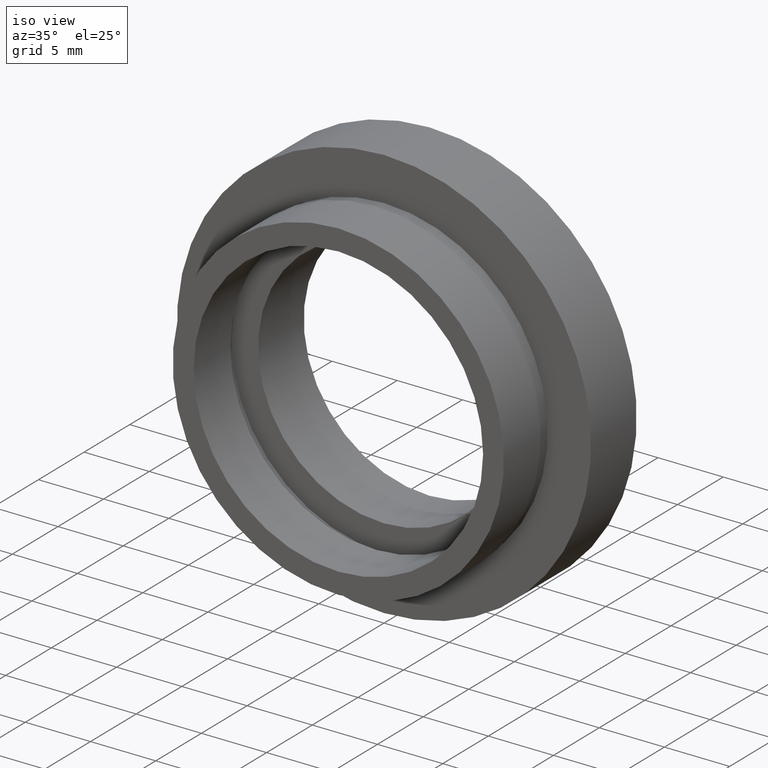
[diagram: clean part render]
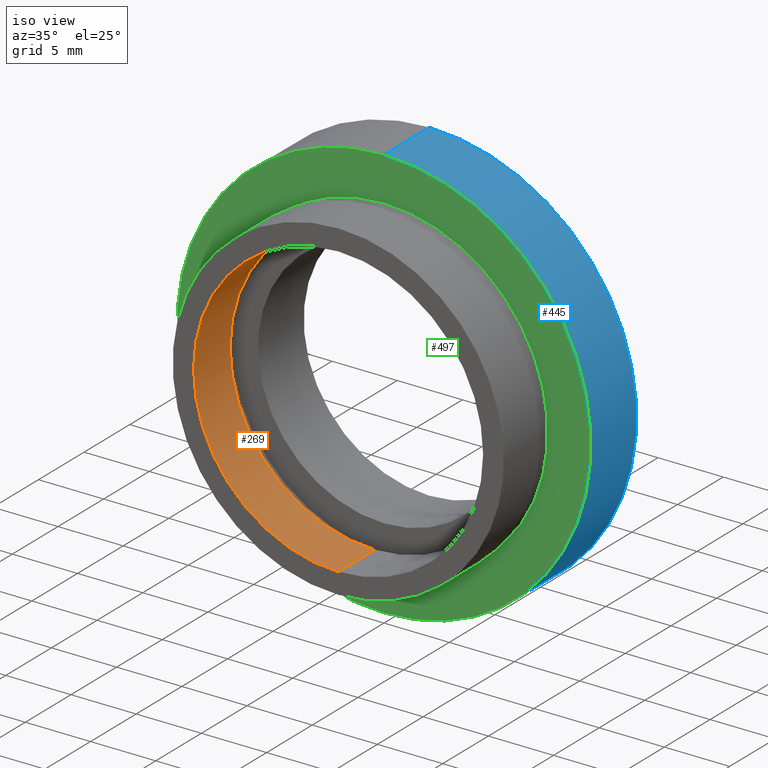
[diagram: same view with three faces highlighted in distinct colors, each labeled with its STEP entity id]
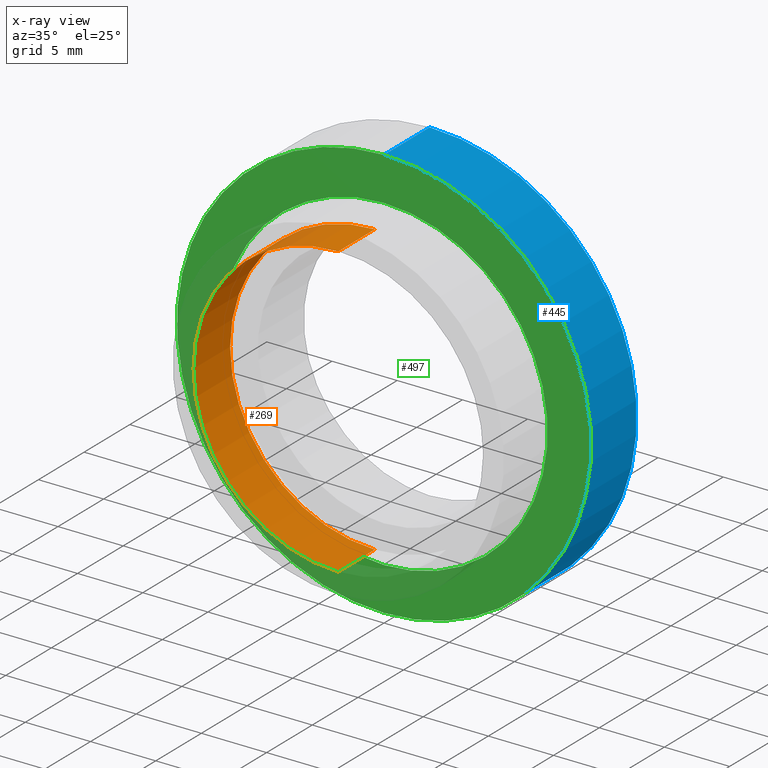
[diagram: x-ray of the same camera — body ghosted, the three highlighted faces saturated]
A machine part, iso view with three faces highlighted in distinct colors.
The next image is the same camera in x-ray (body ghosted, the three faces saturated) — at least one of them is partly hidden behind the body in this view.
Their STEP definitions:

[orange] entity #269 — the highlighted cylindrical surface (partial cylindrical patch) has radius 11.1 mm, axis along (-0, 1, -0).
#7 = DIRECTION ( 'NONE',  ( -0.0000000000000000000, 1.000000000000000000, -0.0000000000000000000 ) ) ;
#17 = DIRECTION ( 'NONE',  ( 0.0000000000000000000, 0.0000000000000000000, 1.000000000000000000 ) ) ;
#40 = CARTESIAN_POINT ( 'NONE',  ( 0.0000000000000000000, 4.000000000000000000, 0.0000000000000000000 ) ) ;
#66 = ORIENTED_EDGE ( 'NONE', *, *, #312, .F. ) ;
#96 = VERTEX_POINT ( 'NONE', #353 ) ;
#103 = ORIENTED_EDGE ( 'NONE', *, *, #484, .T. ) ;
#134 = EDGE_LOOP ( 'NONE', ( #66, #359, #103, #545 ) ) ;
#153 = VERTEX_POINT ( 'NONE', #192 ) ;
#155 = CARTESIAN_POINT ( 'NONE',  ( 0.0000000000000000000, 0.0000000000000000000, 0.0000000000000000000 ) ) ;
#173 = FACE_OUTER_BOUND ( 'NONE', #134, .T. ) ;
#192 = CARTESIAN_POINT ( 'NONE',  ( 0.0000000000000000000, 0.0000000000000000000, 11.10000000000000100 ) ) ;
#205 = DIRECTION ( 'NONE',  ( -0.0000000000000000000, 1.000000000000000000, -0.0000000000000000000 ) ) ;
#226 = VERTEX_POINT ( 'NONE', #618 ) ;
#262 = CYLINDRICAL_SURFACE ( 'NONE', #304, 11.10000000000000100 ) ;
#269 = ADVANCED_FACE ( 'NONE', ( #173 ), #262, .F. ) ;
#271 = CIRCLE ( 'NONE', #280, 11.10000000000000100 ) ;
#280 = AXIS2_PLACEMENT_3D ( 'NONE', #40, #7, #17 ) ;
#282 = CARTESIAN_POINT ( 'NONE',  ( 1.359357947053562400E-015, 4.000000000000000000, -11.10000000000000100 ) ) ;
#295 = CIRCLE ( 'NONE', #511, 11.10000000000000100 ) ;
#303 = LINE ( 'NONE', #552, #316 ) ;
#304 = AXIS2_PLACEMENT_3D ( 'NONE', #617, #492, #411 ) ;
#312 = EDGE_CURVE ( 'NONE', #96, #153, #295, .T. ) ;
#316 = VECTOR ( 'NONE', #562, 1000.000000000000000 ) ;
#353 = CARTESIAN_POINT ( 'NONE',  ( 1.359357947053562400E-015, 0.0000000000000000000, -11.10000000000000100 ) ) ;
#359 = ORIENTED_EDGE ( 'NONE', *, *, #371, .T. ) ;
#371 = EDGE_CURVE ( 'NONE', #96, #500, #384, .T. ) ;
#384 = LINE ( 'NONE', #395, #457 ) ;
#395 = CARTESIAN_POINT ( 'NONE',  ( 1.359357947053562400E-015, 13.74468085106383300, -11.10000000000000100 ) ) ;
#408 = EDGE_CURVE ( 'NONE', #153, #226, #303, .T. ) ;
#411 = DIRECTION ( 'NONE',  ( 0.0000000000000000000, 0.0000000000000000000, 1.000000000000000000 ) ) ;
#453 = DIRECTION ( 'NONE',  ( -0.0000000000000000000, 1.000000000000000000, -0.0000000000000000000 ) ) ;
#457 = VECTOR ( 'NONE', #205, 1000.000000000000000 ) ;
#484 = EDGE_CURVE ( 'NONE', #500, #226, #271, .T. ) ;
#489 = DIRECTION ( 'NONE',  ( 0.0000000000000000000, 0.0000000000000000000, 1.000000000000000000 ) ) ;
#492 = DIRECTION ( 'NONE',  ( -0.0000000000000000000, 1.000000000000000000, -0.0000000000000000000 ) ) ;
#500 = VERTEX_POINT ( 'NONE', #282 ) ;
#511 = AXIS2_PLACEMENT_3D ( 'NONE', #155, #453, #489 ) ;
#545 = ORIENTED_EDGE ( 'NONE', *, *, #408, .F. ) ;
#552 = CARTESIAN_POINT ( 'NONE',  ( 0.0000000000000000000, 13.74468085106383300, 11.10000000000000100 ) ) ;
#562 = DIRECTION ( 'NONE',  ( -0.0000000000000000000, 1.000000000000000000, -0.0000000000000000000 ) ) ;
#617 = CARTESIAN_POINT ( 'NONE',  ( 0.0000000000000000000, 13.74468085106383300, 0.0000000000000000000 ) ) ;
#618 = CARTESIAN_POINT ( 'NONE',  ( 0.0000000000000000000, 4.000000000000000000, 11.10000000000000100 ) ) ;

[blue] entity #445 — the highlighted cylindrical surface (partial cylindrical patch) has radius 15.875 mm, axis along (-0, 1, -0).
#1 = LINE ( 'NONE', #459, #526 ) ;
#8 = CIRCLE ( 'NONE', #163, 15.87500000000000000 ) ;
#49 = VERTEX_POINT ( 'NONE', #279 ) ;
#72 = DIRECTION ( 'NONE',  ( -0.0000000000000000000, 1.000000000000000000, -0.0000000000000000000 ) ) ;
#75 = AXIS2_PLACEMENT_3D ( 'NONE', #588, #186, #524 ) ;
#110 = VERTEX_POINT ( 'NONE', #537 ) ;
#152 = ORIENTED_EDGE ( 'NONE', *, *, #209, .T. ) ;
#163 = AXIS2_PLACEMENT_3D ( 'NONE', #283, #224, #252 ) ;
#164 = VECTOR ( 'NONE', #350, 1000.000000000000000 ) ;
#180 = EDGE_CURVE ( 'NONE', #582, #595, #8, .T. ) ;
#182 = DIRECTION ( 'NONE',  ( 0.0000000000000000000, 0.0000000000000000000, 1.000000000000000000 ) ) ;
#186 = DIRECTION ( 'NONE',  ( -0.0000000000000000000, 1.000000000000000000, -0.0000000000000000000 ) ) ;
#188 = CIRCLE ( 'NONE', #75, 15.87500000000000000 ) ;
#201 = ORIENTED_EDGE ( 'NONE', *, *, #180, .T. ) ;
#209 = EDGE_CURVE ( 'NONE', #595, #110, #1, .T. ) ;
#224 = DIRECTION ( 'NONE',  ( -0.0000000000000000000, 1.000000000000000000, -0.0000000000000000000 ) ) ;
#230 = EDGE_CURVE ( 'NONE', #582, #49, #559, .T. ) ;
#252 = DIRECTION ( 'NONE',  ( 0.0000000000000000000, 0.0000000000000000000, 1.000000000000000000 ) ) ;
#263 = EDGE_CURVE ( 'NONE', #49, #110, #188, .T. ) ;
#279 = CARTESIAN_POINT ( 'NONE',  ( 0.0000000000000000000, 10.00000000000000000, 15.87500000000000000 ) ) ;
#283 = CARTESIAN_POINT ( 'NONE',  ( 0.0000000000000000000, 5.000000000000000900, 0.0000000000000000000 ) ) ;
#338 = FACE_OUTER_BOUND ( 'NONE', #586, .T. ) ;
#350 = DIRECTION ( 'NONE',  ( -0.0000000000000000000, 1.000000000000000000, -0.0000000000000000000 ) ) ;
#355 = CARTESIAN_POINT ( 'NONE',  ( 0.0000000000000000000, 5.000000000000000900, 15.87500000000000000 ) ) ;
#430 = CARTESIAN_POINT ( 'NONE',  ( 0.0000000000000000000, 13.74468085106383300, 0.0000000000000000000 ) ) ;
#445 = ADVANCED_FACE ( 'NONE', ( #338 ), #522, .T. ) ;
#459 = CARTESIAN_POINT ( 'NONE',  ( 1.944126793646423200E-015, 13.74468085106383300, -15.87500000000000000 ) ) ;
#470 = CARTESIAN_POINT ( 'NONE',  ( 1.944126793646423200E-015, 5.000000000000000900, -15.87500000000000000 ) ) ;
#477 = ORIENTED_EDGE ( 'NONE', *, *, #263, .F. ) ;
#508 = DIRECTION ( 'NONE',  ( -0.0000000000000000000, 1.000000000000000000, -0.0000000000000000000 ) ) ;
#522 = CYLINDRICAL_SURFACE ( 'NONE', #597, 15.87500000000000000 ) ;
#524 = DIRECTION ( 'NONE',  ( 0.0000000000000000000, 0.0000000000000000000, 1.000000000000000000 ) ) ;
#526 = VECTOR ( 'NONE', #508, 1000.000000000000000 ) ;
#537 = CARTESIAN_POINT ( 'NONE',  ( 1.944126793646423200E-015, 10.00000000000000000, -15.87500000000000000 ) ) ;
#559 = LINE ( 'NONE', #615, #164 ) ;
#576 = ORIENTED_EDGE ( 'NONE', *, *, #230, .F. ) ;
#582 = VERTEX_POINT ( 'NONE', #355 ) ;
#586 = EDGE_LOOP ( 'NONE', ( #201, #152, #477, #576 ) ) ;
#588 = CARTESIAN_POINT ( 'NONE',  ( 0.0000000000000000000, 10.00000000000000000, 0.0000000000000000000 ) ) ;
#595 = VERTEX_POINT ( 'NONE', #470 ) ;
#597 = AXIS2_PLACEMENT_3D ( 'NONE', #430, #72, #182 ) ;
#615 = CARTESIAN_POINT ( 'NONE',  ( 0.0000000000000000000, 13.74468085106383300, 15.87500000000000000 ) ) ;

[green] entity #497 — the highlighted planar face has unit normal (-0, 1, 0).
#8 = CIRCLE ( 'NONE', #163, 15.87500000000000000 ) ;
#26 = CIRCLE ( 'NONE', #228, 12.55000000000000100 ) ;
#58 = AXIS2_PLACEMENT_3D ( 'NONE', #334, #337, #95 ) ;
#67 = EDGE_LOOP ( 'NONE', ( #97, #148 ) ) ;
#71 = DIRECTION ( 'NONE',  ( 0.0000000000000000000, 0.0000000000000000000, 1.000000000000000000 ) ) ;
#85 = DIRECTION ( 'NONE',  ( 0.0000000000000000000, 0.0000000000000000000, 1.000000000000000000 ) ) ;
#91 = EDGE_CURVE ( 'NONE', #624, #589, #26, .T. ) ;
#93 = ORIENTED_EDGE ( 'NONE', *, *, #91, .T. ) ;
#95 = DIRECTION ( 'NONE',  ( 0.0000000000000000000, 0.0000000000000000000, 1.000000000000000000 ) ) ;
#97 = ORIENTED_EDGE ( 'NONE', *, *, #180, .F. ) ;
#121 = CARTESIAN_POINT ( 'NONE',  ( 0.0000000000000000000, 5.000000000000000900, 0.0000000000000000000 ) ) ;
#131 = PLANE ( 'NONE',  #58 ) ;
#148 = ORIENTED_EDGE ( 'NONE', *, *, #405, .F. ) ;
#163 = AXIS2_PLACEMENT_3D ( 'NONE', #283, #224, #252 ) ;
#180 = EDGE_CURVE ( 'NONE', #582, #595, #8, .T. ) ;
#224 = DIRECTION ( 'NONE',  ( -0.0000000000000000000, 1.000000000000000000, -0.0000000000000000000 ) ) ;
#228 = AXIS2_PLACEMENT_3D ( 'NONE', #407, #530, #236 ) ;
#236 = DIRECTION ( 'NONE',  ( 0.0000000000000000000, 0.0000000000000000000, 1.000000000000000000 ) ) ;
#252 = DIRECTION ( 'NONE',  ( 0.0000000000000000000, 0.0000000000000000000, 1.000000000000000000 ) ) ;
#259 = CARTESIAN_POINT ( 'NONE',  ( 1.536931732929928400E-015, 5.000000000000000900, -12.55000000000000100 ) ) ;
#283 = CARTESIAN_POINT ( 'NONE',  ( 0.0000000000000000000, 5.000000000000000900, 0.0000000000000000000 ) ) ;
#292 = AXIS2_PLACEMENT_3D ( 'NONE', #121, #406, #71 ) ;
#305 = EDGE_LOOP ( 'NONE', ( #612, #93 ) ) ;
#309 = FACE_OUTER_BOUND ( 'NONE', #67, .T. ) ;
#334 = CARTESIAN_POINT ( 'NONE',  ( 15.87500000000000000, 5.000000000000000900, 0.0000000000000000000 ) ) ;
#337 = DIRECTION ( 'NONE',  ( -0.0000000000000000000, 1.000000000000000000, 0.0000000000000000000 ) ) ;
#355 = CARTESIAN_POINT ( 'NONE',  ( 0.0000000000000000000, 5.000000000000000900, 15.87500000000000000 ) ) ;
#380 = FACE_BOUND ( 'NONE', #305, .T. ) ;
#391 = CIRCLE ( 'NONE', #292, 12.55000000000000100 ) ;
#405 = EDGE_CURVE ( 'NONE', #595, #582, #490, .T. ) ;
#406 = DIRECTION ( 'NONE',  ( -0.0000000000000000000, 1.000000000000000000, -0.0000000000000000000 ) ) ;
#407 = CARTESIAN_POINT ( 'NONE',  ( 0.0000000000000000000, 5.000000000000000900, 0.0000000000000000000 ) ) ;
#435 = DIRECTION ( 'NONE',  ( -0.0000000000000000000, 1.000000000000000000, -0.0000000000000000000 ) ) ;
#470 = CARTESIAN_POINT ( 'NONE',  ( 1.944126793646423200E-015, 5.000000000000000900, -15.87500000000000000 ) ) ;
#473 = CARTESIAN_POINT ( 'NONE',  ( 0.0000000000000000000, 5.000000000000000900, 12.55000000000000100 ) ) ;
#490 = CIRCLE ( 'NONE', #551, 15.87500000000000000 ) ;
#497 = ADVANCED_FACE ( 'NONE', ( #309, #380 ), #131, .F. ) ;
#530 = DIRECTION ( 'NONE',  ( -0.0000000000000000000, 1.000000000000000000, -0.0000000000000000000 ) ) ;
#551 = AXIS2_PLACEMENT_3D ( 'NONE', #580, #435, #85 ) ;
#580 = CARTESIAN_POINT ( 'NONE',  ( 0.0000000000000000000, 5.000000000000000900, 0.0000000000000000000 ) ) ;
#582 = VERTEX_POINT ( 'NONE', #355 ) ;
#589 = VERTEX_POINT ( 'NONE', #473 ) ;
#595 = VERTEX_POINT ( 'NONE', #470 ) ;
#611 = EDGE_CURVE ( 'NONE', #589, #624, #391, .T. ) ;
#612 = ORIENTED_EDGE ( 'NONE', *, *, #611, .T. ) ;
#624 = VERTEX_POINT ( 'NONE', #259 ) ;